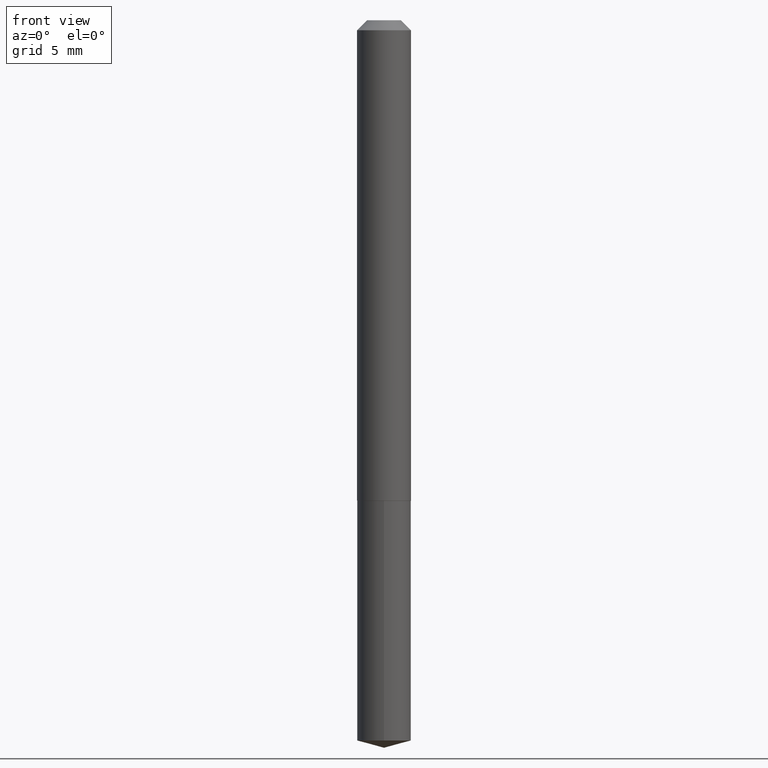
[diagram: clean part render]
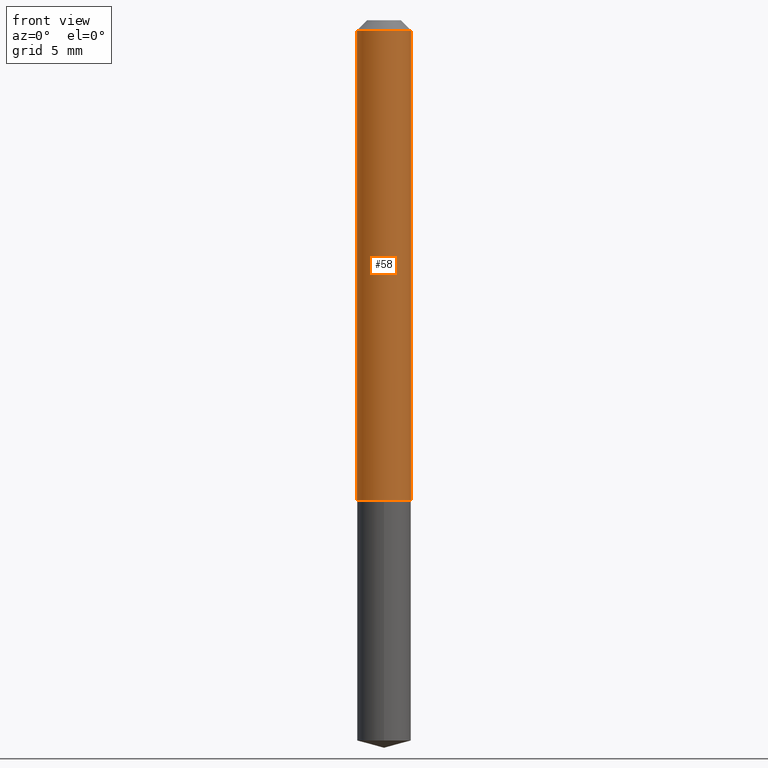
[diagram: same view with one face highlighted and labeled with its STEP entity id]
A machine part, front view. The second image highlights one B-rep face of the part: STEP entity #58.
In plain terms, the highlighted cylindrical surface (edge-blend (fillet) strip) has radius 2.1501 mm, axis along (-0, 0, 1).
Its self-contained STEP definition (entity closure, byte-faithful):
#11 = DIRECTION ( 'NONE',  ( -2.445468806185136877E-29, 3.491481338843145188E-15, 1.000000000000000000 ) ) ;
#15 = DIRECTION ( 'NONE',  ( -2.445468806185136597E-29, 3.491481338843145583E-15, 1.000000000000000000 ) ) ;
#28 = LINE ( 'NONE', #109, #99 ) ;
#32 = AXIS2_PLACEMENT_3D ( 'NONE', #183, #304, #343 ) ;
#34 = DIRECTION ( 'NONE',  ( -2.445468806185136597E-29, 3.491481338843145583E-15, 1.000000000000000000 ) ) ;
#49 = CIRCLE ( 'NONE', #146, 0.08465000000000001690 ) ;
#58 = ADVANCED_FACE ( 'NONE', ( #303 ), #125, .T. ) ;
#97 = EDGE_LOOP ( 'NONE', ( #322, #216, #247, #266 ) ) ;
#98 = DIRECTION ( 'NONE',  ( 1.000000000000000000, -6.982962677686265922E-15, 4.876176775795935232E-29 ) ) ;
#99 = VECTOR ( 'NONE', #321, 39.37007874015748143 ) ;
#104 = CIRCLE ( 'NONE', #32, 0.08465000000000018343 ) ;
#109 = CARTESIAN_POINT ( 'NONE',  ( -0.08465000000000010016, 6.014744258209255191E-16, -4.163878553900782059E-30 ) ) ;
#125 = CYLINDRICAL_SURFACE ( 'NONE', #227, 0.08465000000000010016 ) ;
#130 = VERTEX_POINT ( 'NONE', #220 ) ;
#138 = EDGE_CURVE ( 'NONE', #168, #130, #104, .T. ) ;
#146 = AXIS2_PLACEMENT_3D ( 'NONE', #264, #15, #326 ) ;
#168 = VERTEX_POINT ( 'NONE', #191 ) ;
#183 = CARTESIAN_POINT ( 'NONE',  ( 3.686299678443475330E-29, -5.263058970172158007E-15, -1.507400000000000073 ) ) ;
#191 = CARTESIAN_POINT ( 'NONE',  ( -0.08465000000000018343, -4.661584544351232390E-15, -1.507400000000000073 ) ) ;
#196 = LINE ( 'NONE', #291, #219 ) ;
#200 = EDGE_CURVE ( 'NONE', #168, #250, #28, .T. ) ;
#216 = ORIENTED_EDGE ( 'NONE', *, *, #138, .T. ) ;
#219 = VECTOR ( 'NONE', #11, 39.37007874015748143 ) ;
#220 = CARTESIAN_POINT ( 'NONE',  ( 0.08465000000000018343, -5.854166760838301993E-15, -1.507400000000000073 ) ) ;
#221 = EDGE_CURVE ( 'NONE', #250, #236, #49, .T. ) ;
#227 = AXIS2_PLACEMENT_3D ( 'NONE', #332, #34, #98 ) ;
#236 = VERTEX_POINT ( 'NONE', #252 ) ;
#247 = ORIENTED_EDGE ( 'NONE', *, *, #277, .T. ) ;
#250 = VERTEX_POINT ( 'NONE', #288 ) ;
#252 = CARTESIAN_POINT ( 'NONE',  ( 0.08465000000000001690, -7.002165825049916069E-16, -0.03125000000000020123 ) ) ;
#264 = CARTESIAN_POINT ( 'NONE',  ( 7.642090019328601786E-31, -1.091087918388490144E-16, -0.03125000000000020123 ) ) ;
#266 = ORIENTED_EDGE ( 'NONE', *, *, #221, .F. ) ;
#277 = EDGE_CURVE ( 'NONE', #130, #236, #196, .T. ) ;
#288 = CARTESIAN_POINT ( 'NONE',  ( -0.08465000000000001690, -2.084609455184576753E-15, -0.03125000000000020123 ) ) ;
#291 = CARTESIAN_POINT ( 'NONE',  ( 0.08465000000000010016, -5.911077906661430979E-16, 4.127683640711264116E-30 ) ) ;
#303 = FACE_OUTER_BOUND ( 'NONE', #97, .T. ) ;
#304 = DIRECTION ( 'NONE',  ( -2.445468806185136597E-29, 3.491481338843145583E-15, 1.000000000000000000 ) ) ;
#321 = DIRECTION ( 'NONE',  ( -2.445468806185136877E-29, 3.491481338843145188E-15, 1.000000000000000000 ) ) ;
#322 = ORIENTED_EDGE ( 'NONE', *, *, #200, .F. ) ;
#326 = DIRECTION ( 'NONE',  ( 1.000000000000000000, -6.982962677686265922E-15, 0.000000000000000000 ) ) ;
#332 = CARTESIAN_POINT ( 'NONE',  ( 0.000000000000000000, 0.000000000000000000, 0.000000000000000000 ) ) ;
#343 = DIRECTION ( 'NONE',  ( 1.000000000000000000, -6.982962677686266711E-15, 0.000000000000000000 ) ) ;